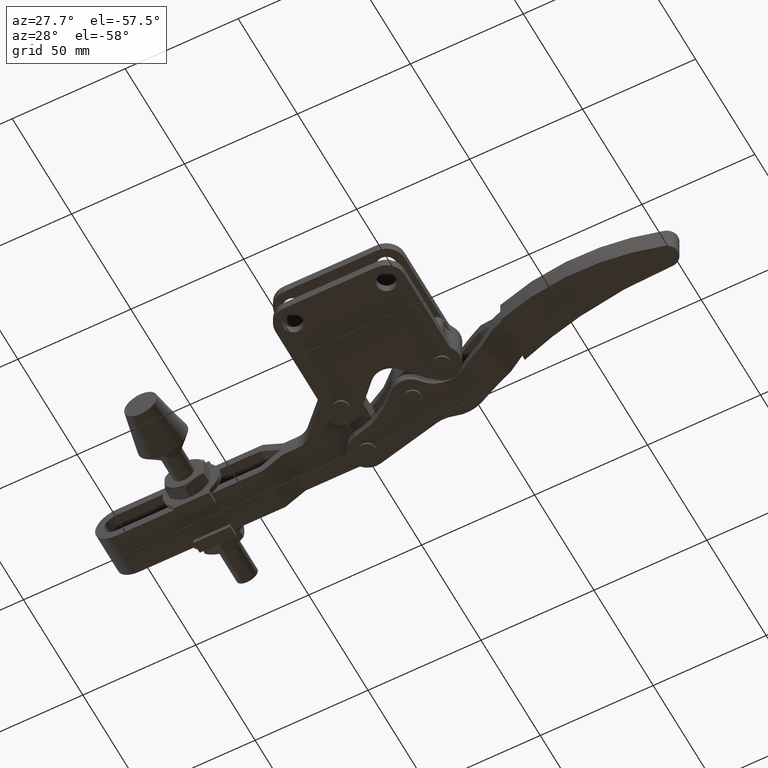
[diagram: clean part render]
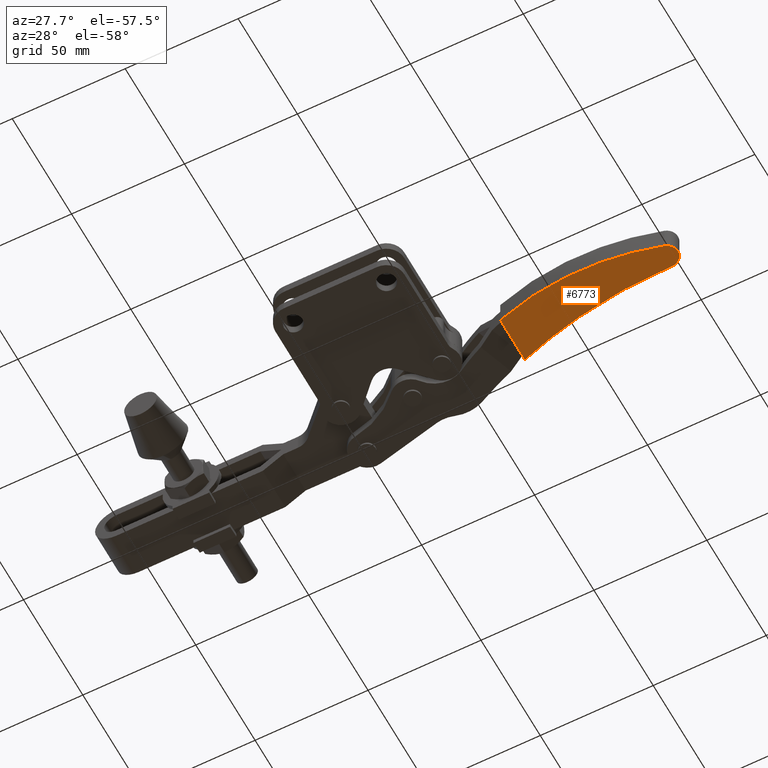
[diagram: same view with one face highlighted and labeled with its STEP entity id]
A machine part, auxiliary view. The second image highlights one B-rep face of the part: STEP entity #6773.
In plain terms, the highlighted planar face has unit normal (0, 0, -1).
Its self-contained STEP definition (entity closure, byte-faithful):
#297 = CARTESIAN_POINT ( 'NONE',  ( 50.58685581025629600, 40.24673611589901900, -9.499999999999721100 ) ) ;
#439 = EDGE_LOOP ( 'NONE', ( #7677, #5523, #8437, #1568, #7035 ) ) ;
#686 = DIRECTION ( 'NONE',  ( 1.880792234194940100E-014, 2.455260102403142500E-017, -1.000000000000000000 ) ) ;
#718 = CIRCLE ( 'NONE', #5577, 4.999999999999999100 ) ;
#788 = CARTESIAN_POINT ( 'NONE',  ( 99.15824971532860800, 32.01654820971621300, -9.499999999998804500 ) ) ;
#1023 = CARTESIAN_POINT ( 'NONE',  ( 22.61765067860474300, 48.70981663193917700, -9.499999977619630400 ) ) ;
#1114 = EDGE_CURVE ( 'NONE', #8273, #8968, #3819, .T. ) ;
#1241 = EDGE_CURVE ( 'NONE', #8968, #6343, #4885, .T. ) ;
#1393 = PLANE ( 'NONE',  #7938 ) ;
#1568 = ORIENTED_EDGE ( 'NONE', *, *, #1241, .F. ) ;
#1861 = VECTOR ( 'NONE', #6472, 1000.000000000000000 ) ;
#1888 = CARTESIAN_POINT ( 'NONE',  ( 94.15826434000990700, 32.00445496370601000, -9.499999999998898700 ) ) ;
#2269 = AXIS2_PLACEMENT_3D ( 'NONE', #3061, #7501, #2337 ) ;
#2337 = DIRECTION ( 'NONE',  ( 0.9999970750637411400, 0.002418649202040601800, 1.873501354054952000E-014 ) ) ;
#2403 = CARTESIAN_POINT ( 'NONE',  ( 37.21457113713999100, 23.18848390368755500, -9.499999999999980500 ) ) ;
#2626 = DIRECTION ( 'NONE',  ( 0.9999970750637411400, 0.002418649202040601800, 1.873501354054952000E-014 ) ) ;
#2932 = B_SPLINE_CURVE_WITH_KNOTS ( 'NONE', 5,
 ( #3974, #6187, #4715, #297, #5473, #1023 ),
 .UNSPECIFIED., .F., .F.,
 ( 6, 6 ),
 ( 1.110764993427085300E-016, 0.07277428358943997800 ),
 .UNSPECIFIED. ) ;
#3053 = EDGE_CURVE ( 'NONE', #6343, #4013, #718, .T. ) ;
#3061 = CARTESIAN_POINT ( 'NONE',  ( 94.15826434000990700, 32.00445496370601000, -9.499999999998898700 ) ) ;
#3311 = CARTESIAN_POINT ( 'NONE',  ( 66.37213572788265000, 20.84278871716341200, -9.499999999999428000 ) ) ;
#3819 = B_SPLINE_CURVE_WITH_KNOTS ( 'NONE', 5,
 ( #9220, #2403, #6796, #3311, #7049, #6322 ),
 .UNSPECIFIED., .F., .F.,
 ( 6, 6 ),
 ( 1.425059404098854000E-007, 0.07404232257266157900 ),
 .UNSPECIFIED. ) ;
#3974 = CARTESIAN_POINT ( 'NONE',  ( 94.08862832718712400, 37.00352430664058500, -9.499999999998898700 ) ) ;
#4013 = VERTEX_POINT ( 'NONE', #6697 ) ;
#4146 = FACE_OUTER_BOUND ( 'NONE', #439, .T. ) ;
#4179 = EDGE_CURVE ( 'NONE', #4013, #4814, #2932, .T. ) ;
#4681 = CARTESIAN_POINT ( 'NONE',  ( 22.66801694025606700, 27.88574909492273700, -9.499999905955819600 ) ) ;
#4715 = CARTESIAN_POINT ( 'NONE',  ( 64.88127984611719500, 37.90677620651587200, -9.499999999999449300 ) ) ;
#4814 = VERTEX_POINT ( 'NONE', #8480 ) ;
#4885 = CIRCLE ( 'NONE', #2269, 4.999999999999999100 ) ;
#4945 = CARTESIAN_POINT ( 'NONE',  ( 22.62149597772712500, 47.11996727706226600, -9.500000000000245100 ) ) ;
#4946 = CARTESIAN_POINT ( 'NONE',  ( 95.60933101720192400, 27.21920309327097300, -9.499999999998870200 ) ) ;
#5113 = CARTESIAN_POINT ( 'NONE',  ( 22.62149597772715400, 47.11996727706226600, -9.500000000000245100 ) ) ;
#5421 = EDGE_CURVE ( 'NONE', #4814, #8273, #5801, .T. ) ;
#5473 = CARTESIAN_POINT ( 'NONE',  ( 36.49559054940129200, 43.82705921383596600, -9.499999999999984000 ) ) ;
#5523 = ORIENTED_EDGE ( 'NONE', *, *, #4179, .F. ) ;
#5577 = AXIS2_PLACEMENT_3D ( 'NONE', #1888, #7065, #2626 ) ;
#5801 = LINE ( 'NONE', #4945, #1861 ) ;
#5865 = DIRECTION ( 'NONE',  ( 0.002418649202039811200, -0.9999970750637411400, 2.093723715514421600E-017 ) ) ;
#6187 = CARTESIAN_POINT ( 'NONE',  ( 79.37803966652069200, 36.80215480941414800, -9.499999999999172200 ) ) ;
#6322 = CARTESIAN_POINT ( 'NONE',  ( 95.60933101720192400, 27.21920309327097300, -9.499999999998870200 ) ) ;
#6343 = VERTEX_POINT ( 'NONE', #788 ) ;
#6472 = DIRECTION ( 'NONE',  ( 0.002418649202039811200, -0.9999970750637411400, 2.093723715514421300E-017 ) ) ;
#6697 = CARTESIAN_POINT ( 'NONE',  ( 94.08862832718712400, 37.00352430664058500, -9.499999999998898700 ) ) ;
#6773 = ADVANCED_FACE ( 'NONE', ( #4146 ), #1393, .T. ) ;
#6796 = CARTESIAN_POINT ( 'NONE',  ( 51.78384828911237000, 20.97616776443369300, -9.499999999999706900 ) ) ;
#7035 = ORIENTED_EDGE ( 'NONE', *, *, #1114, .F. ) ;
#7049 = CARTESIAN_POINT ( 'NONE',  ( 80.97943358985891400, 22.78836167925225800, -9.499999999999156200 ) ) ;
#7065 = DIRECTION ( 'NONE',  ( -1.880792234194940400E-014, -2.455260102404608100E-017, 1.000000000000000000 ) ) ;
#7501 = DIRECTION ( 'NONE',  ( -1.880792234194940400E-014, -2.455260102404608100E-017, 1.000000000000000000 ) ) ;
#7677 = ORIENTED_EDGE ( 'NONE', *, *, #5421, .F. ) ;
#7938 = AXIS2_PLACEMENT_3D ( 'NONE', #5113, #686, #5865 ) ;
#8273 = VERTEX_POINT ( 'NONE', #4681 ) ;
#8437 = ORIENTED_EDGE ( 'NONE', *, *, #3053, .F. ) ;
#8480 = CARTESIAN_POINT ( 'NONE',  ( 22.61765067860474300, 48.70981663193917700, -9.499999977619630400 ) ) ;
#8968 = VERTEX_POINT ( 'NONE', #4946 ) ;
#9220 = CARTESIAN_POINT ( 'NONE',  ( 22.66801694025606700, 27.88574909492273700, -9.499999905955819600 ) ) ;